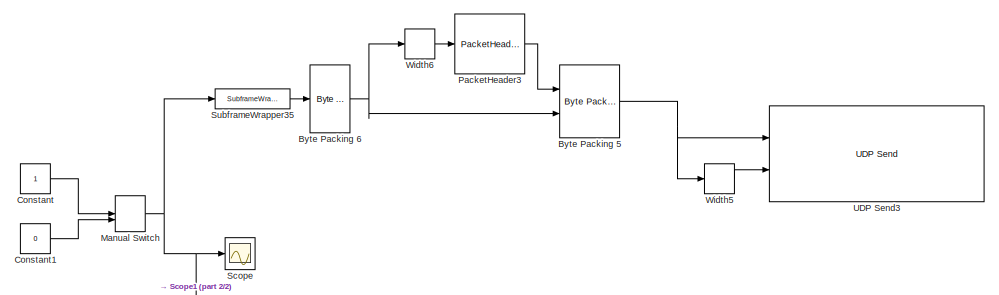
[diagram: root canvas - part 1/2, top center region]
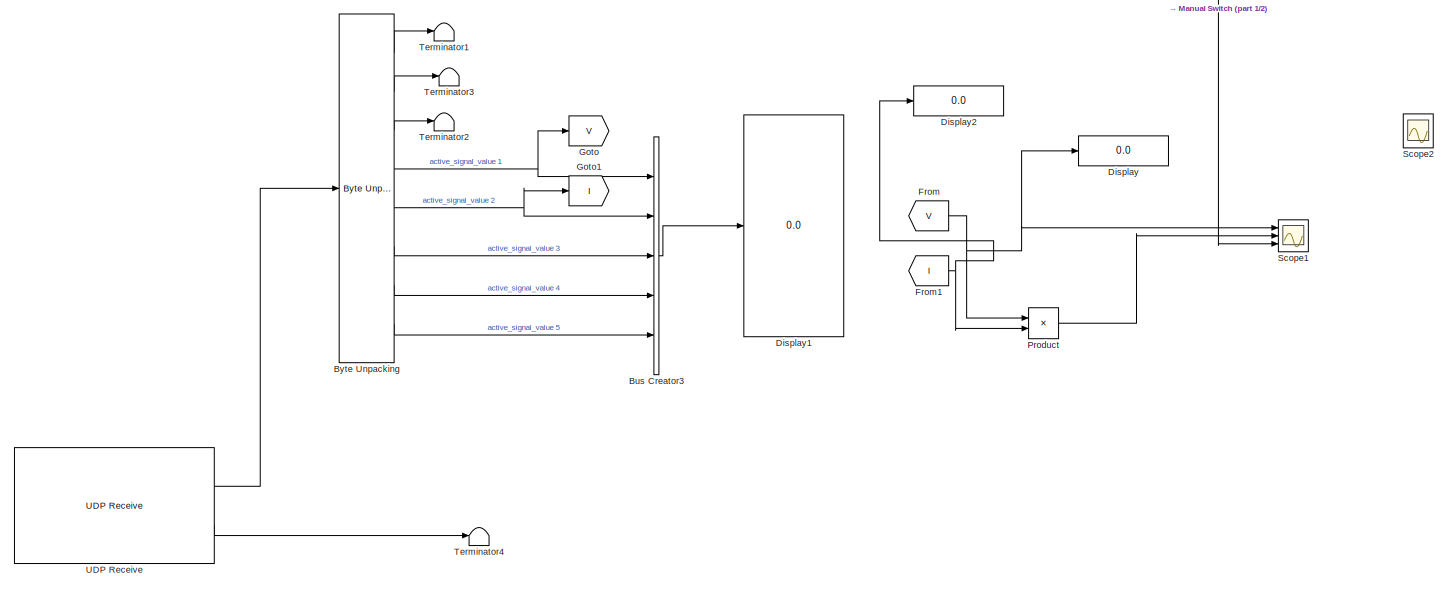
[diagram: root canvas - part 2/2, full width, bottom band]
MODEL slx_5270e5c803a1
KIND model
CONFIG AbsTol = auto
CONFIG EnableMultiTasking = off
CONFIG FixedStep = auto
CONFIG MaxStep = auto
CONFIG MinStep = auto
CONFIG RelTol = 1e-3
CONFIG SampleTimeConstraint = Unconstrained
CONFIG Solver = VariableStepAuto
CONFIG SolverName = VariableStepAuto
CONFIG StartTime = 0.0
CONFIG StopTime = 1000
BLOCK [BusCreator] Bus Creator3
  DisplayOption = bar
  InheritFromInputs = on
  Inputs = 5
  Ports = [5, 1]
BLOCK [Reference] Byte Packing 5  REF=xpcutilitieslib/Byte Packing 
  Ports = [2, 1]
  SourceBlock = xpcutilitieslib/Byte Packing
  SourceProductBaseCode = XP
  SourceType = xpcbytepacking
BLOCK [Reference] Byte Packing 6  REF=xpcutilitieslib/Byte Packing 
  Ports = [1, 1]
  SourceBlock = xpcutilitieslib/Byte Packing
  SourceProductBaseCode = XP
  SourceType = xpcbytepacking
BLOCK [Reference] Byte Unpacking   REF=xpcutilitieslib/Byte Unpacking 
  Ports = [1, 8]
  SourceBlock = xpcutilitieslib/Byte Unpacking
  SourceProductBaseCode = XP
  SourceType = xpcbytepacking
BLOCK [Constant] Constant
  SampleTime = 0.01
BLOCK [Constant] Constant1
  SampleTime = 0.01
  Value = 0
BLOCK [Display] Display
  Decimation = 1
  Ports = [1]
BLOCK [Display] Display1
  Decimation = 1
  Format = decimal (Stored Integer)
  Ports = [1]
BLOCK [Display] Display2
  Decimation = 1
  Ports = [1]
BLOCK [From] From
  GotoTag = V
BLOCK [From] From1
  GotoTag = I
BLOCK [Goto] Goto
  GotoTag = V
BLOCK [Goto] Goto1
  GotoTag = I
BLOCK [ManualSwitch] Manual Switch
BLOCK [Reference] PacketHeader3  REF=lib_header_20a/PacketHeader  (lib defined in slx_3303b7827c43)
  Ports = [1, 1]
  SourceBlock = lib_header_20a/PacketHeader
BLOCK [Product] Product
  Ports = [2, 1]
BLOCK [Scope] Scope
  Floating = off
  NumInputPorts = 1
  Ports = [1]
  ScopeSpecificationString = Simulink.scopes.TimeScopeBlockCfg('CurrentConfiguration', extmgr.ConfigurationSet(extmgr.Configuration('Core','General UI',true),extmgr.Configuration('Core','Source UI',true),extmgr.Configuration('Sources','WiredSimulink',true),extmgr.Configuration('Visuals','Time Domain',true,'SerializedDisplays',{struct('MinYLimReal','-0.125','MaxYLimReal','1.125','YLabelReal','','MinYLimMag','0.00000','MaxYLimM...<+1351ch>
BLOCK [Scope] Scope1
  Floating = off
  NumInputPorts = 3
  Ports = [3]
  ScopeSpecificationString = Simulink.scopes.TimeScopeBlockCfg('CurrentConfiguration', extmgr.ConfigurationSet(extmgr.Configuration('Core','General UI',true),extmgr.Configuration('Core','Source UI',true),extmgr.Configuration('Sources','WiredSimulink',true,'DataLoggingVariableName','ScopeData1','SampleTime','1'),extmgr.Configuration('Visuals','Time Domain',true,'SerializedDisplays',{struct('MinYLimReal','-1.00000','MaxYLimReal...<+2743ch>
BLOCK [Scope] Scope2
  Commented = on
  Floating = off
  NumInputPorts = 3
  Ports = [3]
  ScopeSpecificationString = Simulink.scopes.TimeScopeBlockCfg('CurrentConfiguration', extmgr.ConfigurationSet(extmgr.Configuration('Core','General UI',true,'FigureColor',[1 1 1]),extmgr.Configuration('Core','Source UI',true),extmgr.Configuration('Sources','WiredSimulink',true,'DataLoggingVariableName','ScopeData2'),extmgr.Configuration('Visuals','Time Domain',true,'SerializedDisplays',{struct('MinYLimReal','-12.55','MaxYLimR...<+2883ch>
BLOCK [Reference] SubframeWrapper35  REF=lib_subframe_20a/SubframeWrapper  (lib defined in slx_70c4b6980695)
  Ports = [1, 1]
  SourceBlock = lib_subframe_20a/SubframeWrapper
BLOCK [Terminator] Terminator1
BLOCK [Terminator] Terminator2
BLOCK [Terminator] Terminator3
BLOCK [Terminator] Terminator4
BLOCK [Reference] UDP Receive  REF=xpcrtudplib/UDP Receive
  Ports = [0, 2]
  SourceBlock = xpcrtudplib/UDP Receive
  SourceProductBaseCode = XP
  SourceType = slrtudpreceive
BLOCK [Reference] UDP Send3  REF=xpcrtudplib/UDP Send
  Ports = [2]
  SourceBlock = xpcrtudplib/UDP Send
  SourceProductBaseCode = XP
  SourceType = slrtudpsend
BLOCK [Width] Width5
BLOCK [Width] Width6
LINE Bus Creator3:1 -> Display1:1
NET Byte Packing 5:1 -> UDP Send3:1, Width5:1
NET Byte Packing 6:1 -> Byte Packing 5:2, Width6:1
LINE Byte Unpacking :1 -> Terminator1:1
LINE Byte Unpacking :2 -> Terminator3:1
LINE Byte Unpacking :3 -> Terminator2:1
NET Byte Unpacking :4 -> Bus Creator3:1, Goto:1
NET Byte Unpacking :5 -> Bus Creator3:2, Goto1:1
LINE Byte Unpacking :6 -> Bus Creator3:3
LINE Byte Unpacking :7 -> Bus Creator3:4
LINE Byte Unpacking :8 -> Bus Creator3:5
LINE Constant1:1 -> Manual Switch:2
LINE Constant:1 -> Manual Switch:1
NET From1:1 -> Display2:1, Product:2
NET From:1 -> Display:1, Product:1, Scope1:1
NET Manual Switch:1 -> Scope1:3, Scope:1, SubframeWrapper35:1
LINE PacketHeader3:1 -> Byte Packing 5:1
LINE Product:1 -> Scope1:2
LINE SubframeWrapper35:1 -> Byte Packing 6:1
LINE UDP Receive:1 -> Byte Unpacking :1
LINE UDP Receive:2 -> Terminator4:1
LINE Width5:1 -> UDP Send3:2
LINE Width6:1 -> PacketHeader3:1
note: NET lines group one-source signal fan-out (src -> all destinations, sorted); 1:1 wires keep LINE
